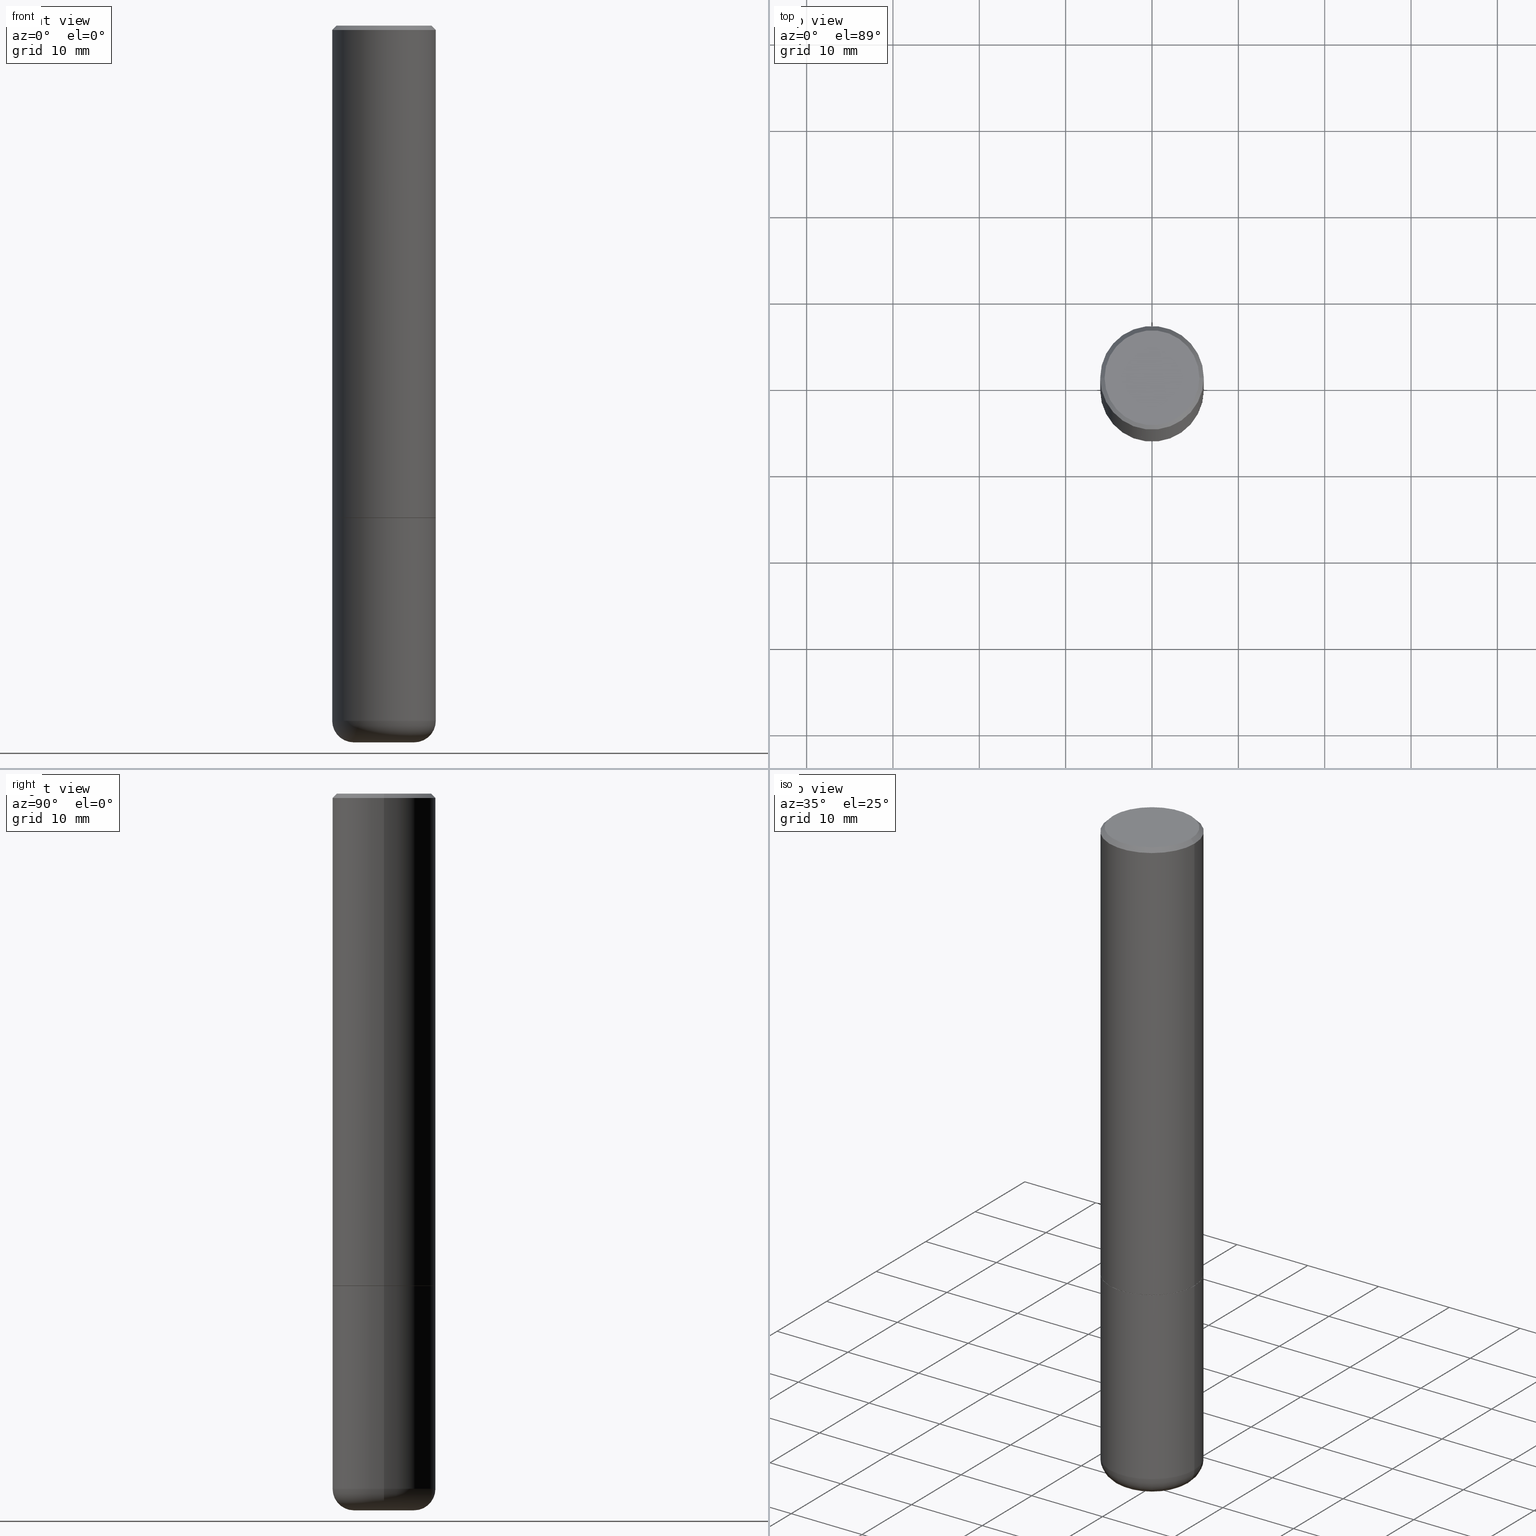
[diagram: canonical four-view strip — front | top / right | iso, engineering-drawing reading convention]
A machine part, canonical four-view strip (front | top / right | iso — engineering-drawing reading convention). The complete STEP part file that produces these views, byte-faithful:
ISO-10303-21;
HEADER;
FILE_DESCRIPTION (( 'STEP AP203' ),
    '1' );
FILE_NAME ('48014.STEP',
    '2024-03-06T19:45:19',
    ( '' ),
    ( '' ),
    'SwSTEP 2.0',
    'SolidWorks 2023',
    '' );
FILE_SCHEMA (( 'CONFIG_CONTROL_DESIGN' ));
ENDSEC;

DATA;
#1 = DIRECTION ( 'NONE',  ( -2.445468806185136597E-29, 3.491481338843145583E-15, 1.000000000000000000 ) ) ;
#2 = ORIENTED_EDGE ( 'NONE', *, *, #183, .F. ) ;
#3 = PERSON_AND_ORGANIZATION ( #281, #224 ) ;
#4 = CARTESIAN_POINT ( 'NONE',  ( -0.2361999999999999933, 1.678301941865356591E-15, -1.161852468318208757E-29 ) ) ;
#5 = ORIENTED_EDGE ( 'NONE', *, *, #13, .F. ) ;
#6 = CIRCLE ( 'NONE', #94, 0.2362000000000000210 ) ;
#7 = EDGE_LOOP ( 'NONE', ( #357, #174, #95, #2 ) ) ;
#8 = APPROVAL_STATUS ( 'not_yet_approved' ) ;
#9 = VERTEX_POINT ( 'NONE', #104 ) ;
#10 = EDGE_CURVE ( 'NONE', #328, #106, #70, .T. ) ;
#11 = FACE_OUTER_BOUND ( 'NONE', #162, .T. ) ;
#12 = DIRECTION ( 'NONE',  ( -2.445468806185136597E-29, 3.491481338843145583E-15, 1.000000000000000000 ) ) ;
#13 = EDGE_CURVE ( 'NONE', #161, #261, #203, .T. ) ;
#14 = CARTESIAN_POINT ( 'NONE',  ( 0.000000000000000000, 0.000000000000000000, 0.000000000000000000 ) ) ;
#15 =( LENGTH_UNIT ( ) NAMED_UNIT ( * ) SI_UNIT ( $, .METRE. ) );
#16 = ADVANCED_FACE ( 'NONE', ( #277 ), #390, .T. ) ;
#17 = DIRECTION ( 'NONE',  ( -1.000000000000000000, 6.982962677686265922E-15, -4.876176775795935793E-29 ) ) ;
#18 = AXIS2_PLACEMENT_3D ( 'NONE', #30, #407, #128 ) ;
#19 = CARTESIAN_POINT ( 'NONE',  ( 0.2361999999999999933, -1.649375784469496131E-15, 1.151752954443000088E-29 ) ) ;
#20 = VECTOR ( 'NONE', #257, 39.37007874015748143 ) ;
#21 = ORIENTED_EDGE ( 'NONE', *, *, #393, .F. ) ;
#22 = ORIENTED_EDGE ( 'NONE', *, *, #406, .T. ) ;
#23 = CARTESIAN_POINT ( 'NONE',  ( 5.487876547960064752E-29, -7.835233272497902340E-15, -2.244099999999999984 ) ) ;
#24 = ORIENTED_EDGE ( 'NONE', *, *, #342, .T. ) ;
#25 = ORIENTED_EDGE ( 'NONE', *, *, #13, .T. ) ;
#26 = APPROVAL ( #335, 'UNSPECIFIED' ) ;
#27 = DIRECTION ( 'NONE',  ( 1.000000000000000000, -6.982962677686268288E-15, 0.000000000000000000 ) ) ;
#28 = DIRECTION ( 'NONE',  ( 1.000000000000000000, -6.982962677686266711E-15, 0.000000000000000000 ) ) ;
#29 = EDGE_LOOP ( 'NONE', ( #22, #123, #21, #320 ) ) ;
#30 = CARTESIAN_POINT ( 'NONE',  ( 7.750424287442554569E-29, -1.106555180719558034E-14, -3.169299999999999784 ) ) ;
#31 = CIRCLE ( 'NONE', #398, 0.1378000000000000058 ) ;
#32 = CARTESIAN_POINT ( 'NONE',  ( -0.1378000000000000058, -1.008642391731816283E-14, -3.169299999999999784 ) ) ;
#33 = VERTEX_POINT ( 'NONE', #158 ) ;
#34 = ORIENTED_EDGE ( 'NONE', *, *, #406, .F. ) ;
#35 = CARTESIAN_POINT ( 'NONE',  ( -0.2361999999999999655, 1.579546157692632833E-15, -0.02000000000000005246 ) ) ;
#36 = CYLINDRICAL_SURFACE ( 'NONE', #266, 0.2362000000000001321 ) ;
#37 = APPROVAL ( #8, 'UNSPECIFIED' ) ;
#38 = CARTESIAN_POINT ( 'NONE',  ( -0.2362000000000001321, 1.678301941865357577E-15, -1.161852468318209457E-29 ) ) ;
#39 = CALENDAR_DATE ( 2024, 6, 3 ) ;
#40 = CIRCLE ( 'NONE', #316, 0.2361999999999999933 ) ;
#41 = CIRCLE ( 'NONE', #363, 0.2351999999999999924 ) ;
#42 = CARTESIAN_POINT ( 'NONE',  ( 5.485431079153880270E-29, -7.831741791159060910E-15, -2.243100000000000094 ) ) ;
#43 = PLANE ( 'NONE',  #282 ) ;
#44 = PLANE ( 'NONE',  #159 ) ;
#45 = CARTESIAN_POINT ( 'NONE',  ( 0.2351999999999999924, -9.477626094289712851E-15, -2.244099999999999984 ) ) ;
#46 = CARTESIAN_POINT ( 'NONE',  ( -0.2361999999999999655, 1.579546157692632833E-15, -0.02000000000000005246 ) ) ;
#47 = APPLICATION_PROTOCOL_DEFINITION ( 'international standard', 'config_control_design', 1994, #253 ) ;
#48 = DIRECTION ( 'NONE',  ( -2.438088387897960049E-29, 3.491481338843145188E-15, 1.000000000000000000 ) ) ;
#49 = EDGE_CURVE ( 'NONE', #60, #414, #31, .T. ) ;
#50 = PRODUCT ( '48014', '48014', '', ( #248 ) ) ;
#51 = PERSON_AND_ORGANIZATION_ROLE ( 'creator' ) ;
#52 = CC_DESIGN_APPROVAL ( #26, ( #80 ) ) ;
#53 = CARTESIAN_POINT ( 'NONE',  ( 5.487876547960065873E-29, -7.835233272497903917E-15, -2.244100000000000428 ) ) ;
#54 = AXIS2_PLACEMENT_3D ( 'NONE', #199, #323, #28 ) ;
#55 = DIRECTION ( 'NONE',  ( 1.000000000000000000, -6.982962677686265922E-15, 4.876176775795935793E-29 ) ) ;
#56 = ORIENTED_EDGE ( 'NONE', *, *, #97, .T. ) ;
#57 = EDGE_LOOP ( 'NONE', ( #111, #374, #321, #373 ) ) ;
#58 = DIRECTION ( 'NONE',  ( 1.000000000000000000, -6.982962677686269077E-15, 0.000000000000000000 ) ) ;
#59 = MANIFOLD_SOLID_BREP ( 'Body-Move/Copy2[1]', #108 ) ;
#60 = VERTEX_POINT ( 'NONE', #247 ) ;
#61 = CARTESIAN_POINT ( 'NONE',  ( 7.991058417971171713E-29, -1.140911357093774644E-14, -3.267700000000000049 ) ) ;
#62 = PRODUCT_DEFINITION_FORMATION_WITH_SPECIFIED_SOURCE ( 'ANY', '', #50, .NOT_KNOWN. ) ;
#63 = DIRECTION ( 'NONE',  ( -1.000000000000000000, 7.105427357601008170E-15, 0.000000000000000000 ) ) ;
#64 = CARTESIAN_POINT ( 'NONE',  ( 0.1378000000000000058, -1.202780406418074782E-14, -3.169299999999999784 ) ) ;
#65 = ADVANCED_FACE ( 'NONE', ( #11 ), #43, .F. ) ;
#66 = DIRECTION ( 'NONE',  ( -2.445468806185136597E-29, 3.491481338843145583E-15, 1.000000000000000000 ) ) ;
#67 = CALENDAR_DATE ( 2024, 6, 3 ) ;
#68 = CIRCLE ( 'NONE', #313, 0.2361999999999999933 ) ;
#69 = CALENDAR_DATE ( 2024, 6, 3 ) ;
#70 = LINE ( 'NONE', #38, #165 ) ;
#71 = DATE_AND_TIME ( #107, #349 ) ;
#72 = CC_DESIGN_PERSON_AND_ORGANIZATION_ASSIGNMENT ( #252, #121, ( #83 ) ) ;
#73 = LINE ( 'NONE', #35, #251 ) ;
#74 = CARTESIAN_POINT ( 'NONE',  ( 7.991058417971171713E-29, -1.140911357093774644E-14, -3.267700000000000049 ) ) ;
#75 = ORIENTED_EDGE ( 'NONE', *, *, #355, .F. ) ;
#76 = COORDINATED_UNIVERSAL_TIME_OFFSET ( 5, 0, .BEHIND. ) ;
#77 = CARTESIAN_POINT ( 'NONE',  ( 7.750424287442554569E-29, -1.106555180719558034E-14, -3.169299999999999784 ) ) ;
#78 = ADVANCED_FACE ( 'NONE', ( #330 ), #36, .T. ) ;
#79 = DIRECTION ( 'NONE',  ( 0.7071067811865465735, -7.319954787623252890E-15, -0.7071067811865484609 ) ) ;
#80 = SECURITY_CLASSIFICATION ( '', '', #388 ) ;
#81 = DIRECTION ( 'NONE',  ( -0.7071067811865465735, 2.468850131082246805E-15, -0.7071067811865484609 ) ) ;
#82 = DIRECTION ( 'NONE',  ( 1.000000000000000000, -6.982962677686266711E-15, 4.876176775795936353E-29 ) ) ;
#83 = PRODUCT_DEFINITION ( 'UNKNOWN', '', #62, #122 ) ;
#84 = DIRECTION ( 'NONE',  ( 0.000000000000000000, 0.000000000000000000, 1.000000000000000000 ) ) ;
#85 = FACE_OUTER_BOUND ( 'NONE', #382, .T. ) ;
#86 = DIRECTION ( 'NONE',  ( -2.445468806185136597E-29, 3.491481338843145583E-15, 1.000000000000000000 ) ) ;
#87 = PERSON_AND_ORGANIZATION ( #281, #224 ) ;
#88 = TOROIDAL_SURFACE ( 'NONE', #215, 0.1378000000000000058, 0.09840000000000014013 ) ;
#89 = CIRCLE ( 'NONE', #413, 0.2161999999999999478 ) ;
#90 = DATE_AND_TIME ( #369, #209 ) ;
#91 = FACE_OUTER_BOUND ( 'NONE', #140, .T. ) ;
#92 = PERSON_AND_ORGANIZATION ( #281, #224 ) ;
#93 = VECTOR ( 'NONE', #139, 39.37007874015748143 ) ;
#94 = AXIS2_PLACEMENT_3D ( 'NONE', #395, #387, #338 ) ;
#95 = ORIENTED_EDGE ( 'NONE', *, *, #383, .F. ) ;
#96 = CIRCLE ( 'NONE', #416, 0.2362000000000002709 ) ;
#97 = EDGE_CURVE ( 'NONE', #231, #348, #40, .T. ) ;
#98 = DIRECTION ( 'NONE',  ( 1.000000000000000000, -6.982962677686266711E-15, 4.876176775795936353E-29 ) ) ;
#99 = ORIENTED_EDGE ( 'NONE', *, *, #49, .F. ) ;
#100 = EDGE_LOOP ( 'NONE', ( #236, #234, #354, #127 ) ) ;
#101 = ADVANCED_FACE ( 'NONE', ( #211 ), #134, .T. ) ;
#102 = CARTESIAN_POINT ( 'NONE',  ( -7.306959900346538153E-46, 1.043240219266313067E-31, 2.987958743070287587E-17 ) ) ;
#103 = FACE_OUTER_BOUND ( 'NONE', #57, .T. ) ;
#104 = CARTESIAN_POINT ( 'NONE',  ( 0.2351999999999999924, -9.477626094289712851E-15, -2.244099999999999984 ) ) ;
#105 = DATE_AND_TIME ( #39, #172 ) ;
#106 = VERTEX_POINT ( 'NONE', #46 ) ;
#107 = CALENDAR_DATE ( 2024, 6, 3 ) ;
#108 = CLOSED_SHELL ( 'NONE', ( #227, #208, #153, #200, #16, #146 ) ) ;
#109 = CARTESIAN_POINT ( 'NONE',  ( -0.2362000000000002986, -2.272483767102600582E-15, -2.243100000000000094 ) ) ;
#110 = ORIENTED_EDGE ( 'NONE', *, *, #355, .T. ) ;
#111 = ORIENTED_EDGE ( 'NONE', *, *, #411, .T. ) ;
#112 = DIRECTION ( 'NONE',  ( 1.000000000000000000, -6.982962677686268288E-15, 0.000000000000000000 ) ) ;
#113 = CC_DESIGN_PERSON_AND_ORGANIZATION_ASSIGNMENT ( #237, #206, ( #62 ) ) ;
#114 = AXIS2_PLACEMENT_3D ( 'NONE', #164, #418, #27 ) ;
#115 = APPROVAL_DATE_TIME ( #105, #26 ) ;
#116 = AXIS2_PLACEMENT_3D ( 'NONE', #14, #84, #149 ) ;
#117 = APPLICATION_PROTOCOL_DEFINITION ( 'international standard', 'config_control_design', 1994, #228 ) ;
#118 = DIRECTION ( 'NONE',  ( 1.000000000000000000, -6.982962677686269077E-15, 0.000000000000000000 ) ) ;
#119 = APPROVAL ( #339, 'UNSPECIFIED' ) ;
#120 = CIRCLE ( 'NONE', #326, 0.2161999999999999478 ) ;
#121 = PERSON_AND_ORGANIZATION_ROLE ( 'creator' ) ;
#122 = DESIGN_CONTEXT ( 'detailed design', #253, 'design' ) ;
#123 = ORIENTED_EDGE ( 'NONE', *, *, #246, .T. ) ;
#124 = EDGE_CURVE ( 'NONE', #205, #298, #6, .T. ) ;
#125 = LINE ( 'NONE', #408, #20 ) ;
#126 = AXIS2_PLACEMENT_3D ( 'NONE', #53, #185, #17 ) ;
#127 = ORIENTED_EDGE ( 'NONE', *, *, #179, .F. ) ;
#128 = DIRECTION ( 'NONE',  ( 1.000000000000000000, -6.982962677686269077E-15, 4.883557194083113462E-29 ) ) ;
#129 = ORIENTED_EDGE ( 'NONE', *, *, #386, .F. ) ;
#130 = EDGE_LOOP ( 'NONE', ( #409, #99 ) ) ;
#131 = EDGE_LOOP ( 'NONE', ( #138, #225, #353, #289 ) ) ;
#132 = AXIS2_PLACEMENT_3D ( 'NONE', #329, #12, #358 ) ;
#133 = DIRECTION ( 'NONE',  ( 1.000000000000000000, -6.982962677686272233E-15, 0.000000000000000000 ) ) ;
#134 = CONICAL_SURFACE ( 'NONE', #155, 0.2361999999999999655, 0.7853981633974469467 ) ;
#135 = VECTOR ( 'NONE', #229, 39.37007874015748143 ) ;
#136 = FACE_OUTER_BOUND ( 'NONE', #131, .T. ) ;
#137 = DIRECTION ( 'NONE',  ( 7.105427357601001859E-15, 1.000000000000000000, -3.491481338843145583E-15 ) ) ;
#138 = ORIENTED_EDGE ( 'NONE', *, *, #246, .F. ) ;
#139 = DIRECTION ( 'NONE',  ( -2.445468806185136877E-29, 3.491481338843145188E-15, 1.000000000000000000 ) ) ;
#140 = EDGE_LOOP ( 'NONE', ( #34, #226 ) ) ;
#141 = AXIS2_PLACEMENT_3D ( 'NONE', #297, #302, #98 ) ;
#142 = CONICAL_SURFACE ( 'NONE', #267, 0.2351999999999999924, 0.7853981633976873100 ) ;
#143 = CARTESIAN_POINT ( 'NONE',  ( 1.509716530915770323E-15, 0.2161999999999999478, -7.399184717425363306E-16 ) ) ;
#144 = ORIENTED_EDGE ( 'NONE', *, *, #342, .F. ) ;
#145 = COORDINATED_UNIVERSAL_TIME_OFFSET ( 5, 0, .BEHIND. ) ;
#146 = ADVANCED_FACE ( 'NONE', ( #364 ), #44, .T. ) ;
#147 = VECTOR ( 'NONE', #79, 39.37007874015748143 ) ;
#148 = APPROVAL_PERSON_ORGANIZATION ( #216, #119, #177 ) ;
#149 = DIRECTION ( 'NONE',  ( 1.000000000000000000, 0.000000000000000000, 0.000000000000000000 ) ) ;
#150 = DIRECTION ( 'NONE',  ( -1.000000000000000000, 6.982962677686265922E-15, -4.876176775795935793E-29 ) ) ;
#151 = EDGE_CURVE ( 'NONE', #9, #33, #307, .T. ) ;
#152 = CARTESIAN_POINT ( 'NONE',  ( 0.2161999999999999478, -1.586759460484351396E-15, 2.987958743071370422E-17 ) ) ;
#153 = ADVANCED_FACE ( 'NONE', ( #371 ), #217, .F. ) ;
#154 = ADVANCED_FACE ( 'NONE', ( #156 ), #274, .T. ) ;
#155 = AXIS2_PLACEMENT_3D ( 'NONE', #284, #249, #279 ) ;
#156 = FACE_OUTER_BOUND ( 'NONE', #197, .T. ) ;
#157 = AXIS2_PLACEMENT_3D ( 'NONE', #318, #314, #315 ) ;
#158 = CARTESIAN_POINT ( 'NONE',  ( 0.2362000000000002709, -9.481117575628559013E-15, -2.243100000000000094 ) ) ;
#159 = AXIS2_PLACEMENT_3D ( 'NONE', #74, #204, #170 ) ;
#160 = ORIENTED_EDGE ( 'NONE', *, *, #324, .F. ) ;
#161 = VERTEX_POINT ( 'NONE', #152 ) ;
#162 = EDGE_LOOP ( 'NONE', ( #110, #24 ) ) ;
#163 = LOCAL_TIME ( 14, 45, 19.00000000000000000, #372 ) ;
#164 = CARTESIAN_POINT ( 'NONE',  ( 5.487876547960064752E-29, -7.835233272497902340E-15, -2.244099999999999984 ) ) ;
#165 = VECTOR ( 'NONE', #171, 39.37007874015748143 ) ;
#166 = CYLINDRICAL_SURFACE ( 'NONE', #273, 0.2361999999999999933 ) ;
#167 = ORIENTED_EDGE ( 'NONE', *, *, #286, .F. ) ;
#168 = CARTESIAN_POINT ( 'NONE',  ( 0.2361999999999999655, -1.690279253850498574E-15, -0.02000000000000005246 ) ) ;
#169 = CARTESIAN_POINT ( 'NONE',  ( 0.000000000000000000, 0.000000000000000000, 0.000000000000000000 ) ) ;
#170 = DIRECTION ( 'NONE',  ( -1.000000000000000000, 6.982962677686265922E-15, -4.876176775795935793E-29 ) ) ;
#171 = DIRECTION ( 'NONE',  ( -2.445468806185136877E-29, 3.491481338843145188E-15, 1.000000000000000000 ) ) ;
#172 = LOCAL_TIME ( 14, 45, 19.00000000000000000, #76 ) ;
#173 = DIRECTION ( 'NONE',  ( -2.445468806185136597E-29, 3.491481338843145583E-15, 1.000000000000000000 ) ) ;
#174 = ORIENTED_EDGE ( 'NONE', *, *, #10, .T. ) ;
#175 = ORIENTED_EDGE ( 'NONE', *, *, #238, .T. ) ;
#176 = DIRECTION ( 'NONE',  ( 1.000000000000000000, -6.982962677686266711E-15, 4.876655451117826644E-29 ) ) ;
#177 = APPROVAL_ROLE ( '' ) ;
#178 = ADVANCED_FACE ( 'NONE', ( #91 ), #182, .F. ) ;
#179 = EDGE_CURVE ( 'NONE', #205, #348, #191, .T. ) ;
#180 = CARTESIAN_POINT ( 'NONE',  ( 4.890937612370285420E-31, -6.982962677686308865E-17, -0.02000000000000005246 ) ) ;
#181 = UNCERTAINTY_MEASURE_WITH_UNIT (LENGTH_MEASURE( 1.000000000000000082E-05 ), #255, 'distance_accuracy_value', 'NONE');
#182 = PLANE ( 'NONE',  #415 ) ;
#183 = EDGE_CURVE ( 'NONE', #33, #261, #125, .T. ) ;
#184 = AXIS2_PLACEMENT_3D ( 'NONE', #180, #368, #254 ) ;
#185 = DIRECTION ( 'NONE',  ( 2.438088387897960049E-29, -3.491481338843145188E-15, -1.000000000000000000 ) ) ;
#186 = CIRCLE ( 'NONE', #132, 0.2361999999999999655 ) ;
#187 = CARTESIAN_POINT ( 'NONE',  ( -0.2161999999999999478, 1.544631344304201775E-15, 2.987958743069220160E-17 ) ) ;
#188 = VERTEX_POINT ( 'NONE', #187 ) ;
#189 = FACE_OUTER_BOUND ( 'NONE', #304, .T. ) ;
#190 = DIRECTION ( 'NONE',  ( -2.445468806185136597E-29, 3.491481338843145583E-15, 1.000000000000000000 ) ) ;
#191 = LINE ( 'NONE', #19, #256 ) ;
#192 = EDGE_CURVE ( 'NONE', #348, #231, #68, .T. ) ;
#193 = ADVANCED_BREP_SHAPE_REPRESENTATION ( '48014', ( #59, #332, #116 ), #378 ) ;
#194 = AXIS2_PLACEMENT_3D ( 'NONE', #77, #173, #241 ) ;
#195 = CARTESIAN_POINT ( 'NONE',  ( 7.750424287442554569E-29, -1.106555180719558034E-14, -3.169299999999999784 ) ) ;
#196 = DIRECTION ( 'NONE',  ( -6.982962677686266711E-15, -1.000000000000000000, 3.491481338843145583E-15 ) ) ;
#197 = EDGE_LOOP ( 'NONE', ( #144, #25, #296, #129 ) ) ;
#198 = ORIENTED_EDGE ( 'NONE', *, *, #49, .T. ) ;
#199 = CARTESIAN_POINT ( 'NONE',  ( 4.890937612370285420E-31, -6.982962677686308865E-17, -0.02000000000000005246 ) ) ;
#200 = ADVANCED_FACE ( 'NONE', ( #189 ), #166, .T. ) ;
#201 = AXIS2_PLACEMENT_3D ( 'NONE', #347, #303, #262 ) ;
#202 = DATE_AND_TIME ( #69, #163 ) ;
#203 = LINE ( 'NONE', #168, #147 ) ;
#204 = DIRECTION ( 'NONE',  ( 2.438088387897960049E-29, -3.491481338843145188E-15, -1.000000000000000000 ) ) ;
#205 = VERTEX_POINT ( 'NONE', #260 ) ;
#206 = PERSON_AND_ORGANIZATION_ROLE ( 'design_supplier' ) ;
#207 = CARTESIAN_POINT ( 'NONE',  ( 5.487876547960064752E-29, -7.835233272497902340E-15, -2.244099999999999984 ) ) ;
#208 = ADVANCED_FACE ( 'NONE', ( #103 ), #88, .T. ) ;
#209 = LOCAL_TIME ( 14, 45, 19.00000000000000000, #285 ) ;
#210 = DIRECTION ( 'NONE',  ( 1.000000000000000000, -6.982962677686266711E-15, 4.876176775795936353E-29 ) ) ;
#211 = FACE_OUTER_BOUND ( 'NONE', #404, .T. ) ;
#212 = PERSON_AND_ORGANIZATION_ROLE ( 'design_owner' ) ;
#213 = CARTESIAN_POINT ( 'NONE',  ( -0.2351999999999999924, -6.158738303641923763E-15, -2.244099999999999984 ) ) ;
#214 = DIRECTION ( 'NONE',  ( 1.000000000000000000, -6.982962677686269077E-15, 0.000000000000000000 ) ) ;
#215 = AXIS2_PLACEMENT_3D ( 'NONE', #195, #380, #322 ) ;
#216 = PERSON_AND_ORGANIZATION ( #281, #224 ) ;
#217 = PLANE ( 'NONE',  #126 ) ;
#218 = CARTESIAN_POINT ( 'NONE',  ( 0.1378000000000000058, -1.237136582792291392E-14, -3.267700000000000049 ) ) ;
#219 = CARTESIAN_POINT ( 'NONE',  ( 5.487876547960065873E-29, -7.835233272497903917E-15, -2.244100000000000428 ) ) ;
#220 = PRODUCT_RELATED_PRODUCT_CATEGORY ( 'detail', '', ( #50 ) ) ;
#221 =( NAMED_UNIT ( * ) SI_UNIT ( $, .STERADIAN. ) SOLID_ANGLE_UNIT ( ) );
#222 = DATE_AND_TIME ( #67, #242 ) ;
#223 = AXIS2_PLACEMENT_3D ( 'NONE', #32, #137, #63 ) ;
#224 = ORGANIZATION ( 'UNSPECIFIED', 'UNSPECIFIED', '' ) ;
#225 = ORIENTED_EDGE ( 'NONE', *, *, #276, .T. ) ;
#226 = ORIENTED_EDGE ( 'NONE', *, *, #276, .F. ) ;
#227 = ADVANCED_FACE ( 'NONE', ( #405 ), #258, .T. ) ;
#228 = APPLICATION_CONTEXT ( 'configuration controlled 3d designs of mechanical parts and assemblies' ) ;
#229 = DIRECTION ( 'NONE',  ( -0.7071067811867165487, 7.493145998870964739E-15, 0.7071067811863784858 ) ) ;
#230 = ADVANCED_FACE ( 'NONE', ( #136 ), #301, .T. ) ;
#231 = VERTEX_POINT ( 'NONE', #412 ) ;
#232 = ORIENTED_EDGE ( 'NONE', *, *, #386, .T. ) ;
#233 = LINE ( 'NONE', #4, #93 ) ;
#234 = ORIENTED_EDGE ( 'NONE', *, *, #324, .T. ) ;
#235 = DATE_TIME_ROLE ( 'classification_date' ) ;
#236 = ORIENTED_EDGE ( 'NONE', *, *, #124, .T. ) ;
#237 = PERSON_AND_ORGANIZATION ( #281, #224 ) ;
#238 = EDGE_CURVE ( 'NONE', #414, #205, #317, .T. ) ;
#239 = CARTESIAN_POINT ( 'NONE',  ( 5.487876547960064752E-29, -7.835233272497902340E-15, -2.244099999999999984 ) ) ;
#240 = ORIENTED_EDGE ( 'NONE', *, *, #179, .T. ) ;
#241 = DIRECTION ( 'NONE',  ( 1.000000000000000000, -6.982962677686264344E-15, 0.000000000000000000 ) ) ;
#242 = LOCAL_TIME ( 14, 45, 19.00000000000000000, #385 ) ;
#243 = CIRCLE ( 'NONE', #157, 0.1378000000000000058 ) ;
#244 = DIRECTION ( 'NONE',  ( 1.000000000000000000, -6.982962677686266711E-15, 4.876655451117826644E-29 ) ) ;
#245 = DIMENSIONAL_EXPONENTS ( 1.000000000000000000, 0.000000000000000000, 0.000000000000000000, 0.000000000000000000, 0.000000000000000000, 0.000000000000000000, 0.000000000000000000 ) ;
#246 = EDGE_CURVE ( 'NONE', #375, #328, #268, .T. ) ;
#247 = CARTESIAN_POINT ( 'NONE',  ( -0.1378000000000000058, -9.908617773195276440E-15, -3.267700000000000049 ) ) ;
#248 = MECHANICAL_CONTEXT ( 'NONE', #228, 'mechanical' ) ;
#249 = DIRECTION ( 'NONE',  ( 2.445468806185136597E-29, -3.491481338843145583E-15, -1.000000000000000000 ) ) ;
#250 = DIRECTION ( 'NONE',  ( 1.000000000000000000, -6.982962677686268288E-15, 0.000000000000000000 ) ) ;
#251 = VECTOR ( 'NONE', #81, 39.37007874015748143 ) ;
#252 = PERSON_AND_ORGANIZATION ( #281, #224 ) ;
#253 = APPLICATION_CONTEXT ( 'configuration controlled 3d designs of mechanical parts and assemblies' ) ;
#254 = DIRECTION ( 'NONE',  ( -1.000000000000000000, 6.982962677686266711E-15, 0.000000000000000000 ) ) ;
#255 =( CONVERSION_BASED_UNIT ( 'INCH', #396 ) LENGTH_UNIT ( ) NAMED_UNIT ( #245 ) );
#256 = VECTOR ( 'NONE', #291, 39.37007874015748143 ) ;
#257 = DIRECTION ( 'NONE',  ( -2.445468806185136877E-29, 3.491481338843145188E-15, 1.000000000000000000 ) ) ;
#258 = CYLINDRICAL_SURFACE ( 'NONE', #141, 0.2361999999999999933 ) ;
#259 = ORIENTED_EDGE ( 'NONE', *, *, #265, .T. ) ;
#260 = CARTESIAN_POINT ( 'NONE',  ( 0.2362000000000000766, -1.271492759166507844E-14, -3.169299999999999784 ) ) ;
#261 = VERTEX_POINT ( 'NONE', #352 ) ;
#262 = DIRECTION ( 'NONE',  ( 1.000000000000000000, -6.982962677686269077E-15, 0.000000000000000000 ) ) ;
#263 = ORIENTED_EDGE ( 'NONE', *, *, #10, .F. ) ;
#264 = APPROVAL_PERSON_ORGANIZATION ( #270, #37, #311 ) ;
#265 = EDGE_CURVE ( 'NONE', #106, #261, #280, .T. ) ;
#266 = AXIS2_PLACEMENT_3D ( 'NONE', #309, #337, #82 ) ;
#267 = AXIS2_PLACEMENT_3D ( 'NONE', #239, #340, #112 ) ;
#268 = LINE ( 'NONE', #379, #135 ) ;
#269 = ORIENTED_EDGE ( 'NONE', *, *, #192, .T. ) ;
#270 = PERSON_AND_ORGANIZATION ( #281, #224 ) ;
#271 = PERSON_AND_ORGANIZATION ( #281, #224 ) ;
#272 = ORIENTED_EDGE ( 'NONE', *, *, #400, .T. ) ;
#273 = AXIS2_PLACEMENT_3D ( 'NONE', #294, #66, #403 ) ;
#274 = CONICAL_SURFACE ( 'NONE', #184, 0.2361999999999999655, 0.7853981633974469467 ) ;
#275 = EDGE_LOOP ( 'NONE', ( #167, #198, #175, #290 ) ) ;
#276 = EDGE_CURVE ( 'NONE', #375, #9, #365, .T. ) ;
#277 = FACE_OUTER_BOUND ( 'NONE', #275, .T. ) ;
#278 = PERSON_AND_ORGANIZATION_ROLE ( 'classification_officer' ) ;
#279 = DIRECTION ( 'NONE',  ( -1.000000000000000000, 6.982962677686266711E-15, 0.000000000000000000 ) ) ;
#280 = CIRCLE ( 'NONE', #54, 0.2361999999999999655 ) ;
#281 = PERSON ( 'UNSPECIFIED', 'UNSPECIFIED', 'UNSPECIFIED', ('UNSPECIFIED'), ('UNSPECIFIED'), ('UNSPECIFIED') ) ;
#282 = AXIS2_PLACEMENT_3D ( 'NONE', #143, #384, #150 ) ;
#283 = CIRCLE ( 'NONE', #223, 0.09840000000000014013 ) ;
#284 = CARTESIAN_POINT ( 'NONE',  ( 4.890937612370285420E-31, -6.982962677686308865E-17, -0.02000000000000005246 ) ) ;
#285 = COORDINATED_UNIVERSAL_TIME_OFFSET ( 5, 0, .BEHIND. ) ;
#286 = EDGE_CURVE ( 'NONE', #60, #298, #283, .T. ) ;
#287 = CC_DESIGN_APPROVAL ( #119, ( #83 ) ) ;
#288 = DIRECTION ( 'NONE',  ( -2.445468806185136597E-29, 3.491481338843145583E-15, 1.000000000000000000 ) ) ;
#289 = ORIENTED_EDGE ( 'NONE', *, *, #334, .F. ) ;
#290 = ORIENTED_EDGE ( 'NONE', *, *, #400, .F. ) ;
#291 = DIRECTION ( 'NONE',  ( -2.445468806185136877E-29, 3.491481338843145188E-15, 1.000000000000000000 ) ) ;
#292 = CC_DESIGN_DATE_AND_TIME_ASSIGNMENT ( #71, #235, ( #80 ) ) ;
#293 = CARTESIAN_POINT ( 'NONE',  ( -0.2362000000000000766, -9.387249865330223945E-15, -3.169299999999999784 ) ) ;
#294 = CARTESIAN_POINT ( 'NONE',  ( 0.000000000000000000, 0.000000000000000000, 0.000000000000000000 ) ) ;
#295 = CC_DESIGN_PERSON_AND_ORGANIZATION_ASSIGNMENT ( #87, #212, ( #50 ) ) ;
#296 = ORIENTED_EDGE ( 'NONE', *, *, #383, .T. ) ;
#297 = CARTESIAN_POINT ( 'NONE',  ( 0.000000000000000000, 0.000000000000000000, 0.000000000000000000 ) ) ;
#298 = VERTEX_POINT ( 'NONE', #293 ) ;
#299 = CLOSED_SHELL ( 'NONE', ( #376, #78, #154, #101, #344, #230, #178, #65 ) ) ;
#300 = AXIS2_PLACEMENT_3D ( 'NONE', #23, #410, #351 ) ;
#301 = CONICAL_SURFACE ( 'NONE', #300, 0.2351999999999999924, 0.7853981633976873100 ) ;
#302 = DIRECTION ( 'NONE',  ( -2.445468806185136597E-29, 3.491481338843145583E-15, 1.000000000000000000 ) ) ;
#303 = DIRECTION ( 'NONE',  ( -2.445468806185136597E-29, 3.491481338843145583E-15, 1.000000000000000000 ) ) ;
#304 = EDGE_LOOP ( 'NONE', ( #160, #272, #240, #310 ) ) ;
#305 = SHAPE_DEFINITION_REPRESENTATION ( #401, #193 ) ;
#306 = CARTESIAN_POINT ( 'NONE',  ( -7.306959900346538153E-46, 1.043240219266313067E-31, 2.987958743070287587E-17 ) ) ;
#307 = LINE ( 'NONE', #45, #356 ) ;
#308 = EDGE_LOOP ( 'NONE', ( #269, #56 ) ) ;
#309 = CARTESIAN_POINT ( 'NONE',  ( 0.000000000000000000, 0.000000000000000000, 0.000000000000000000 ) ) ;
#310 = ORIENTED_EDGE ( 'NONE', *, *, #97, .F. ) ;
#311 = APPROVAL_ROLE ( '' ) ;
#312 = FACE_OUTER_BOUND ( 'NONE', #29, .T. ) ;
#313 = AXIS2_PLACEMENT_3D ( 'NONE', #402, #346, #58 ) ;
#314 = DIRECTION ( 'NONE',  ( -2.445468806185136597E-29, 3.491481338843145583E-15, 1.000000000000000000 ) ) ;
#315 = DIRECTION ( 'NONE',  ( 1.000000000000000000, -6.982962677686265922E-15, 0.000000000000000000 ) ) ;
#316 = AXIS2_PLACEMENT_3D ( 'NONE', #367, #86, #214 ) ;
#317 = CIRCLE ( 'NONE', #325, 0.09840000000000014013 ) ;
#318 = CARTESIAN_POINT ( 'NONE',  ( 7.991058417971171713E-29, -1.140911357093774644E-14, -3.267700000000000049 ) ) ;
#319 = APPROVAL_DATE_TIME ( #222, #37 ) ;
#320 = ORIENTED_EDGE ( 'NONE', *, *, #151, .F. ) ;
#321 = ORIENTED_EDGE ( 'NONE', *, *, #124, .F. ) ;
#322 = DIRECTION ( 'NONE',  ( 1.000000000000000000, -6.982962677686269077E-15, 4.883557194083113462E-29 ) ) ;
#323 = DIRECTION ( 'NONE',  ( -2.445468806185136597E-29, 3.491481338843145583E-15, 1.000000000000000000 ) ) ;
#324 = EDGE_CURVE ( 'NONE', #298, #231, #233, .T. ) ;
#325 = AXIS2_PLACEMENT_3D ( 'NONE', #64, #196, #133 ) ;
#326 = AXIS2_PLACEMENT_3D ( 'NONE', #306, #392, #176 ) ;
#327 = DATE_TIME_ROLE ( 'creation_date' ) ;
#328 = VERTEX_POINT ( 'NONE', #109 ) ;
#329 = CARTESIAN_POINT ( 'NONE',  ( 4.890937612370285420E-31, -6.982962677686308865E-17, -0.02000000000000005246 ) ) ;
#330 = FACE_OUTER_BOUND ( 'NONE', #7, .T. ) ;
#331 = ORIENTED_EDGE ( 'NONE', *, *, #183, .T. ) ;
#332 = MANIFOLD_SOLID_BREP ( 'Body-Move/Copy2[2]', #299 ) ;
#333 = CIRCLE ( 'NONE', #201, 0.2362000000000002709 ) ;
#334 = EDGE_CURVE ( 'NONE', #328, #33, #333, .T. ) ;
#335 = APPROVAL_STATUS ( 'not_yet_approved' ) ;
#336 = CARTESIAN_POINT ( 'NONE',  ( 0.2361999999999999933, -9.484609056967400443E-15, -2.244100000000000428 ) ) ;
#337 = DIRECTION ( 'NONE',  ( -2.445468806185136597E-29, 3.491481338843145583E-15, 1.000000000000000000 ) ) ;
#338 = DIRECTION ( 'NONE',  ( 1.000000000000000000, -6.982962677686264344E-15, 0.000000000000000000 ) ) ;
#339 = APPROVAL_STATUS ( 'not_yet_approved' ) ;
#340 = DIRECTION ( 'NONE',  ( -2.445468806185136597E-29, 3.491481338843145583E-15, 1.000000000000000000 ) ) ;
#341 = DIRECTION ( 'NONE',  ( 0.7071067811867165487, -2.468850131084027659E-15, 0.7071067811863784858 ) ) ;
#342 = EDGE_CURVE ( 'NONE', #161, #188, #89, .T. ) ;
#343 = CC_DESIGN_SECURITY_CLASSIFICATION ( #80, ( #62 ) ) ;
#344 = ADVANCED_FACE ( 'NONE', ( #85 ), #394, .T. ) ;
#345 = APPROVAL_PERSON_ORGANIZATION ( #3, #26, #381 ) ;
#346 = DIRECTION ( 'NONE',  ( -2.445468806185136597E-29, 3.491481338843145583E-15, 1.000000000000000000 ) ) ;
#347 = CARTESIAN_POINT ( 'NONE',  ( 5.485431079153880270E-29, -7.831741791159060910E-15, -2.243100000000000094 ) ) ;
#348 = VERTEX_POINT ( 'NONE', #336 ) ;
#349 = LOCAL_TIME ( 14, 45, 19.00000000000000000, #145 ) ;
#350 = CC_DESIGN_PERSON_AND_ORGANIZATION_ASSIGNMENT ( #271, #278, ( #80 ) ) ;
#351 = DIRECTION ( 'NONE',  ( 1.000000000000000000, -6.982962677686268288E-15, 0.000000000000000000 ) ) ;
#352 = CARTESIAN_POINT ( 'NONE',  ( 0.2361999999999999655, -1.690279253850498574E-15, -0.02000000000000005246 ) ) ;
#353 = ORIENTED_EDGE ( 'NONE', *, *, #151, .T. ) ;
#354 = ORIENTED_EDGE ( 'NONE', *, *, #192, .F. ) ;
#355 = EDGE_CURVE ( 'NONE', #188, #161, #120, .T. ) ;
#356 = VECTOR ( 'NONE', #341, 39.37007874015748143 ) ;
#357 = ORIENTED_EDGE ( 'NONE', *, *, #393, .T. ) ;
#358 = DIRECTION ( 'NONE',  ( 1.000000000000000000, -6.982962677686266711E-15, 0.000000000000000000 ) ) ;
#359 = ORIENTED_EDGE ( 'NONE', *, *, #265, .F. ) ;
#360 = DIRECTION ( 'NONE',  ( -2.445468806185136597E-29, 3.491481338843145583E-15, 1.000000000000000000 ) ) ;
#361 = CC_DESIGN_PERSON_AND_ORGANIZATION_ASSIGNMENT ( #92, #51, ( #62 ) ) ;
#362 = ORIENTED_EDGE ( 'NONE', *, *, #334, .T. ) ;
#363 = AXIS2_PLACEMENT_3D ( 'NONE', #207, #288, #250 ) ;
#364 = FACE_OUTER_BOUND ( 'NONE', #130, .T. ) ;
#365 = CIRCLE ( 'NONE', #114, 0.2351999999999999924 ) ;
#366 = DIRECTION ( 'NONE',  ( -2.445468806185136597E-29, 3.491481338843145583E-15, 1.000000000000000000 ) ) ;
#367 = CARTESIAN_POINT ( 'NONE',  ( 5.487876547960065873E-29, -7.835233272497903917E-15, -2.244100000000000428 ) ) ;
#368 = DIRECTION ( 'NONE',  ( 2.445468806185136597E-29, -3.491481338843145583E-15, -1.000000000000000000 ) ) ;
#369 = CALENDAR_DATE ( 2024, 6, 3 ) ;
#370 = AXIS2_PLACEMENT_3D ( 'NONE', #169, #366, #210 ) ;
#371 = FACE_OUTER_BOUND ( 'NONE', #308, .T. ) ;
#372 = COORDINATED_UNIVERSAL_TIME_OFFSET ( 5, 0, .BEHIND. ) ;
#373 = ORIENTED_EDGE ( 'NONE', *, *, #238, .F. ) ;
#374 = ORIENTED_EDGE ( 'NONE', *, *, #286, .T. ) ;
#375 = VERTEX_POINT ( 'NONE', #213 ) ;
#376 = ADVANCED_FACE ( 'NONE', ( #312 ), #142, .T. ) ;
#377 = DIRECTION ( 'NONE',  ( 1.000000000000000000, -6.982962677686265922E-15, 0.000000000000000000 ) ) ;
#378 =( GEOMETRIC_REPRESENTATION_CONTEXT ( 3 ) GLOBAL_UNCERTAINTY_ASSIGNED_CONTEXT ( ( #181 ) ) GLOBAL_UNIT_ASSIGNED_CONTEXT ( ( #255, #397, #221 ) ) REPRESENTATION_CONTEXT ( 'NONE', 'WORKASPACE' ) );
#379 = CARTESIAN_POINT ( 'NONE',  ( -0.2351999999999999924, -6.164036757990146954E-15, -2.244099999999999984 ) ) ;
#380 = DIRECTION ( 'NONE',  ( -2.445468806185136597E-29, 3.491481338843145583E-15, 1.000000000000000000 ) ) ;
#381 = APPROVAL_ROLE ( '' ) ;
#382 = EDGE_LOOP ( 'NONE', ( #263, #362, #331, #359 ) ) ;
#383 = EDGE_CURVE ( 'NONE', #261, #106, #186, .T. ) ;
#384 = DIRECTION ( 'NONE',  ( 2.438088387897960049E-29, -3.491481338843145188E-15, -1.000000000000000000 ) ) ;
#385 = COORDINATED_UNIVERSAL_TIME_OFFSET ( 5, 0, .BEHIND. ) ;
#386 = EDGE_CURVE ( 'NONE', #188, #106, #73, .T. ) ;
#387 = DIRECTION ( 'NONE',  ( -2.445468806185136597E-29, 3.491481338843145583E-15, 1.000000000000000000 ) ) ;
#388 = SECURITY_CLASSIFICATION_LEVEL ( 'unclassified' ) ;
#389 = CC_DESIGN_APPROVAL ( #37, ( #62 ) ) ;
#390 = TOROIDAL_SURFACE ( 'NONE', #18, 0.1378000000000000058, 0.09840000000000014013 ) ;
#391 = CIRCLE ( 'NONE', #194, 0.2362000000000000210 ) ;
#392 = DIRECTION ( 'NONE',  ( -2.445468806185136597E-29, 3.491481338843145583E-15, 1.000000000000000000 ) ) ;
#393 = EDGE_CURVE ( 'NONE', #33, #328, #96, .T. ) ;
#394 = CYLINDRICAL_SURFACE ( 'NONE', #370, 0.2362000000000001321 ) ;
#395 = CARTESIAN_POINT ( 'NONE',  ( 7.750424287442554569E-29, -1.106555180719558034E-14, -3.169299999999999784 ) ) ;
#396 = LENGTH_MEASURE_WITH_UNIT ( LENGTH_MEASURE( 0.02539999999999999897 ), #15 );
#397 =( NAMED_UNIT ( * ) PLANE_ANGLE_UNIT ( ) SI_UNIT ( $, .RADIAN. ) );
#398 = AXIS2_PLACEMENT_3D ( 'NONE', #61, #190, #377 ) ;
#399 = APPROVAL_DATE_TIME ( #90, #119 ) ;
#400 = EDGE_CURVE ( 'NONE', #298, #205, #391, .T. ) ;
#401 = PRODUCT_DEFINITION_SHAPE ( 'NONE', 'NONE',  #83 ) ;
#402 = CARTESIAN_POINT ( 'NONE',  ( 5.487876547960065873E-29, -7.835233272497903917E-15, -2.244100000000000428 ) ) ;
#403 = DIRECTION ( 'NONE',  ( 1.000000000000000000, -6.982962677686266711E-15, 4.876176775795936353E-29 ) ) ;
#404 = EDGE_LOOP ( 'NONE', ( #5, #75, #232, #259 ) ) ;
#405 = FACE_OUTER_BOUND ( 'NONE', #100, .T. ) ;
#406 = EDGE_CURVE ( 'NONE', #9, #375, #41, .T. ) ;
#407 = DIRECTION ( 'NONE',  ( -2.445468806185136597E-29, 3.491481338843145583E-15, 1.000000000000000000 ) ) ;
#408 = CARTESIAN_POINT ( 'NONE',  ( 0.2362000000000001321, -1.649375784469497117E-15, 1.151752954443000789E-29 ) ) ;
#409 = ORIENTED_EDGE ( 'NONE', *, *, #411, .F. ) ;
#410 = DIRECTION ( 'NONE',  ( -2.445468806185136597E-29, 3.491481338843145583E-15, 1.000000000000000000 ) ) ;
#411 = EDGE_CURVE ( 'NONE', #414, #60, #243, .T. ) ;
#412 = CARTESIAN_POINT ( 'NONE',  ( -0.2361999999999999933, -7.772090597981385734E-15, -2.244100000000000428 ) ) ;
#413 = AXIS2_PLACEMENT_3D ( 'NONE', #102, #1, #244 ) ;
#414 = VERTEX_POINT ( 'NONE', #218 ) ;
#415 = AXIS2_PLACEMENT_3D ( 'NONE', #219, #48, #55 ) ;
#416 = AXIS2_PLACEMENT_3D ( 'NONE', #42, #360, #118 ) ;
#417 = CC_DESIGN_DATE_AND_TIME_ASSIGNMENT ( #202, #327, ( #83 ) ) ;
#418 = DIRECTION ( 'NONE',  ( -2.445468806185136597E-29, 3.491481338843145583E-15, 1.000000000000000000 ) ) ;
ENDSEC;
END-ISO-10303-21;
